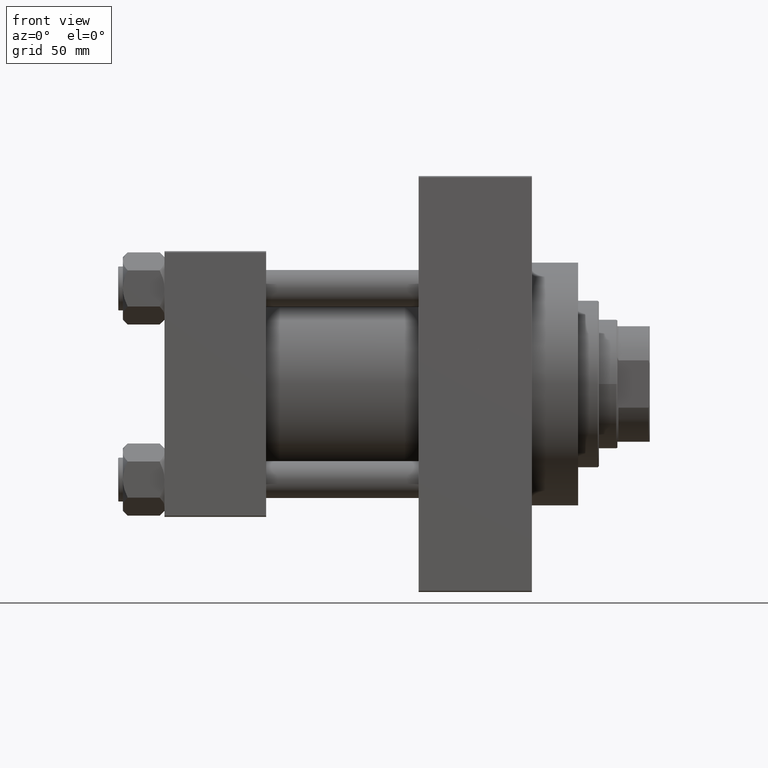
[diagram: clean part render]
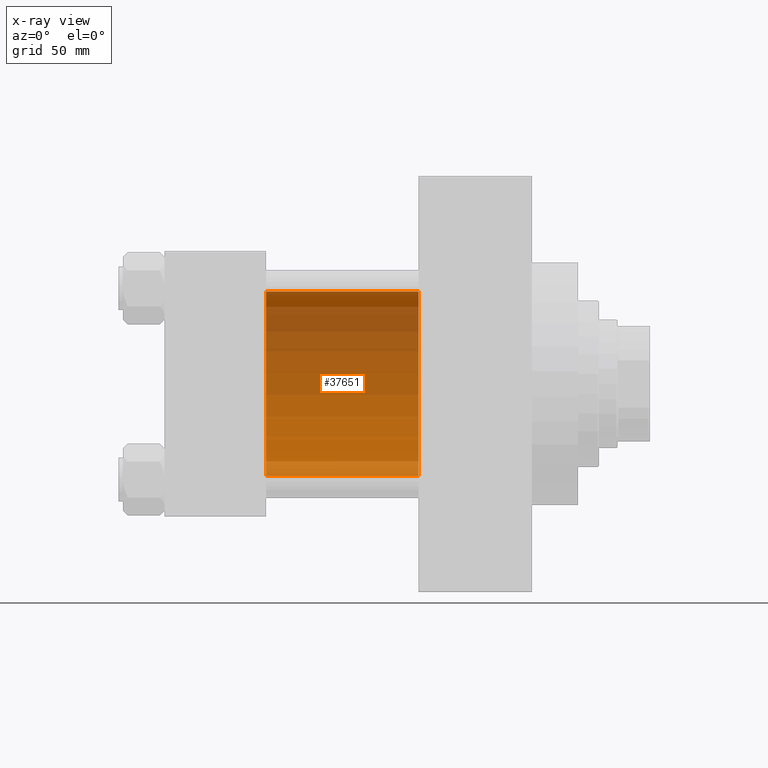
[diagram: x-ray — body ghosted, one internal face saturated and labeled with its STEP entity id]
A machine part, front view, then the same camera in x-ray: the body is ghosted and one INTERNAL B-rep face — a face not visible from any outside direction — is saturated and labeled: STEP entity #37651.
In plain terms, the highlighted cylindrical surface (partial cylindrical patch) has radius 40 mm, axis along (-1, -0, -0).
Its self-contained STEP definition (entity closure, byte-faithful):
#1975 = CARTESIAN_POINT ( 'NONE',  ( 110.0000000000000000, -2.602085213965210642E-15, 0.000000000000000000 ) ) ;
#2412 = EDGE_LOOP ( 'NONE', ( #35177, #38449, #8236, #5902 ) ) ;
#2932 = VERTEX_POINT ( 'NONE', #21838 ) ;
#3919 = DIRECTION ( 'NONE',  ( -1.000000000000000000, -0.000000000000000000, -0.000000000000000000 ) ) ;
#5423 = CIRCLE ( 'NONE', #15031, 40.00000000000000000 ) ;
#5808 = AXIS2_PLACEMENT_3D ( 'NONE', #14651, #10883, #41370 ) ;
#5894 = CARTESIAN_POINT ( 'NONE',  ( 44.00000000000000000, -2.602085213965210642E-15, 40.00000000000000000 ) ) ;
#5902 = ORIENTED_EDGE ( 'NONE', *, *, #24030, .F. ) ;
#8236 = ORIENTED_EDGE ( 'NONE', *, *, #46921, .T. ) ;
#10259 = DIRECTION ( 'NONE',  ( -1.000000000000000000, -0.000000000000000000, -0.000000000000000000 ) ) ;
#10883 = DIRECTION ( 'NONE',  ( -1.000000000000000000, -0.000000000000000000, -0.000000000000000000 ) ) ;
#14338 = VERTEX_POINT ( 'NONE', #5894 ) ;
#14651 = CARTESIAN_POINT ( 'NONE',  ( 110.0000000000000000, -2.602085213965210642E-15, 0.000000000000000000 ) ) ;
#15031 = AXIS2_PLACEMENT_3D ( 'NONE', #49036, #29573, #44546 ) ;
#16615 = VERTEX_POINT ( 'NONE', #24408 ) ;
#17047 = LINE ( 'NONE', #20802, #25486 ) ;
#20802 = CARTESIAN_POINT ( 'NONE',  ( 110.0000000000000000, -2.602085213965210642E-15, 40.00000000000000000 ) ) ;
#21838 = CARTESIAN_POINT ( 'NONE',  ( 44.00000000000000000, 2.296501982624201990E-15, -40.00000000000000000 ) ) ;
#22759 = CARTESIAN_POINT ( 'NONE',  ( 110.0000000000000000, 2.296501982624201990E-15, -40.00000000000000000 ) ) ;
#23964 = CIRCLE ( 'NONE', #39117, 40.00000000000000000 ) ;
#24030 = EDGE_CURVE ( 'NONE', #2932, #14338, #5423, .T. ) ;
#24408 = CARTESIAN_POINT ( 'NONE',  ( 110.0000000000000000, -2.602085213965210642E-15, 40.00000000000000000 ) ) ;
#25486 = VECTOR ( 'NONE', #10259, 1000.000000000000000 ) ;
#26913 = EDGE_CURVE ( 'NONE', #42080, #2932, #38927, .T. ) ;
#28404 = EDGE_CURVE ( 'NONE', #42080, #16615, #23964, .T. ) ;
#28979 = DIRECTION ( 'NONE',  ( 1.000000000000000000, 0.000000000000000000, 0.000000000000000000 ) ) ;
#29573 = DIRECTION ( 'NONE',  ( 1.000000000000000000, 0.000000000000000000, 0.000000000000000000 ) ) ;
#30714 = CARTESIAN_POINT ( 'NONE',  ( 110.0000000000000000, 2.296501982624201990E-15, -40.00000000000000000 ) ) ;
#33656 = FACE_OUTER_BOUND ( 'NONE', #2412, .T. ) ;
#35098 = VECTOR ( 'NONE', #3919, 1000.000000000000000 ) ;
#35177 = ORIENTED_EDGE ( 'NONE', *, *, #26913, .F. ) ;
#37651 = ADVANCED_FACE ( 'NONE', ( #33656 ), #48874, .F. ) ;
#38449 = ORIENTED_EDGE ( 'NONE', *, *, #28404, .T. ) ;
#38927 = LINE ( 'NONE', #30714, #35098 ) ;
#39117 = AXIS2_PLACEMENT_3D ( 'NONE', #1975, #28979, #44199 ) ;
#41370 = DIRECTION ( 'NONE',  ( 0.000000000000000000, 0.000000000000000000, 1.000000000000000000 ) ) ;
#42080 = VERTEX_POINT ( 'NONE', #22759 ) ;
#44199 = DIRECTION ( 'NONE',  ( 0.000000000000000000, 0.000000000000000000, -1.000000000000000000 ) ) ;
#44546 = DIRECTION ( 'NONE',  ( 0.000000000000000000, 0.000000000000000000, -1.000000000000000000 ) ) ;
#46921 = EDGE_CURVE ( 'NONE', #16615, #14338, #17047, .T. ) ;
#48874 = CYLINDRICAL_SURFACE ( 'NONE', #5808, 40.00000000000000000 ) ;
#49036 = CARTESIAN_POINT ( 'NONE',  ( 44.00000000000000000, -2.602085213965210642E-15, 0.000000000000000000 ) ) ;